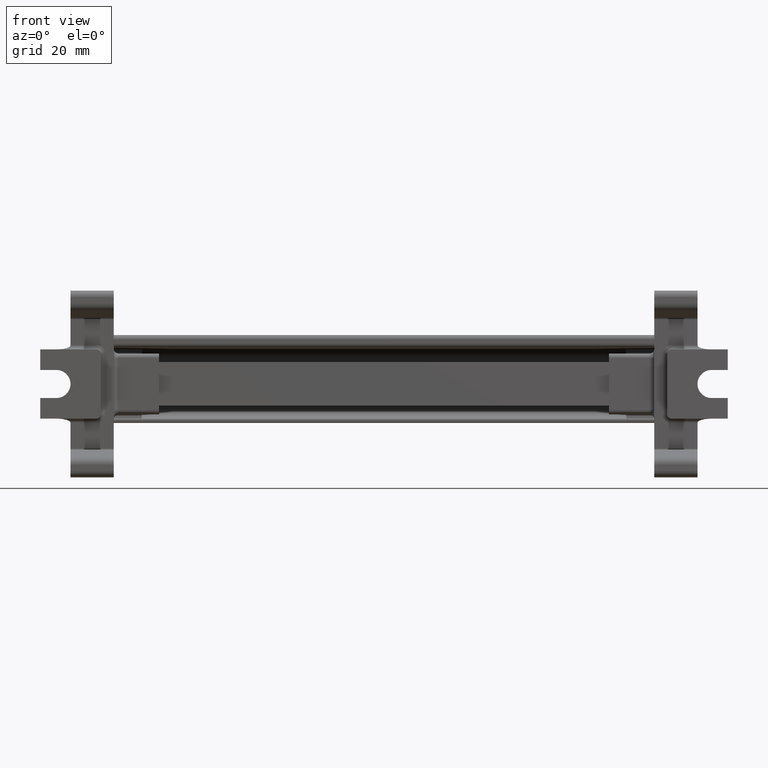
[diagram: clean part render]
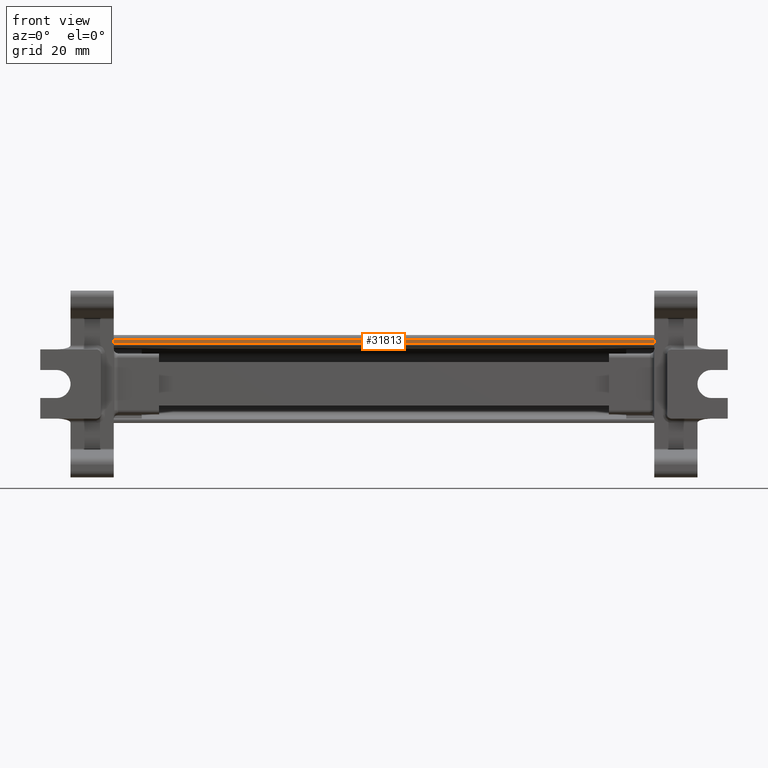
[diagram: same view with one face highlighted and labeled with its STEP entity id]
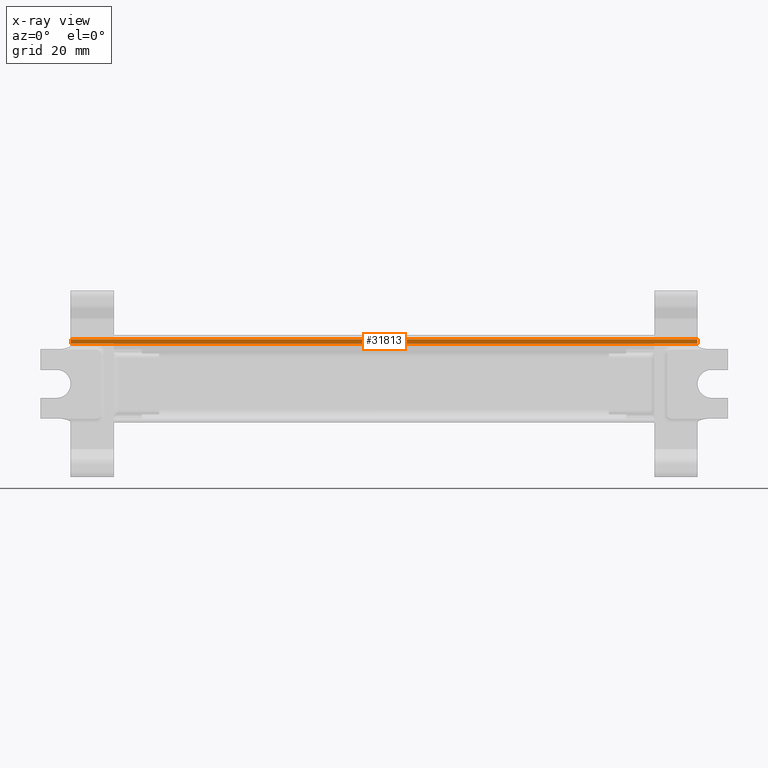
[diagram: x-ray of the same camera — body ghosted, the highlighted face saturated]
A machine part, front view. The second image highlights one B-rep face of the part: STEP entity #31813.
The next image is the same camera in x-ray: the body ghosted, the highlighted face saturated — about 0% of this face is hidden behind the body in this view.
In plain terms, the highlighted planar face has unit normal (0, 1, 0).
Its self-contained STEP definition (entity closure, byte-faithful):
#2259 = VECTOR ( 'NONE', #28400, 1000.000000000000000 ) ;
#6541 = EDGE_CURVE ( 'NONE', #33535, #12142, #15228, .T. ) ;
#6545 = EDGE_CURVE ( 'NONE', #12142, #12150, #15233, .T. ) ;
#6579 = EDGE_CURVE ( 'NONE', #33539, #12150, #15312, .T. ) ;
#8729 = EDGE_CURVE ( 'NONE', #33539, #33535, #28323, .T. ) ;
#10975 = ORIENTED_EDGE ( 'NONE', *, *, #6579, .T. ) ;
#12142 = VERTEX_POINT ( 'NONE', #18125 ) ;
#12150 = VERTEX_POINT ( 'NONE', #18109 ) ;
#12156 = ORIENTED_EDGE ( 'NONE', *, *, #6541, .F. ) ;
#12171 = ORIENTED_EDGE ( 'NONE', *, *, #6545, .F. ) ;
#12175 = ORIENTED_EDGE ( 'NONE', *, *, #8729, .F. ) ;
#14455 = VECTOR ( 'NONE', #15229, 1000.000000000000000 ) ;
#14458 = VECTOR ( 'NONE', #15313, 1000.000000000000000 ) ;
#14474 = VECTOR ( 'NONE', #15217, 1000.000000000000000 ) ;
#15217 = DIRECTION ( 'NONE',  ( -0.0000000000000000000, 6.931465349461502100E-007, -0.9999999999997597500 ) ) ;
#15228 = LINE ( 'NONE', #15241, #14474 ) ;
#15229 = DIRECTION ( 'NONE',  ( -1.000000000000000000, 9.157197356643954800E-016, 2.520934957069364000E-015 ) ) ;
#15231 = CARTESIAN_POINT ( 'NONE',  ( 12.64730230417519700, 50.08103363503439500, 47.42610898715796000 ) ) ;
#15233 = LINE ( 'NONE', #15231, #14455 ) ;
#15241 = CARTESIAN_POINT ( 'NONE',  ( 44.99230230417515500, 50.08105625487985400, 14.79253968043703400 ) ) ;
#15311 = CARTESIAN_POINT ( 'NONE',  ( -99.84769769582486300, 50.08103295100605100, 14.79254817504061100 ) ) ;
#15312 = LINE ( 'NONE', #15311, #14458 ) ;
#15313 = DIRECTION ( 'NONE',  ( -2.532522334615111200E-015, 0.0000000000000000000, -1.000000000000000000 ) ) ;
#15857 = EDGE_LOOP ( 'NONE', ( #12156, #12175, #10975, #12171 ) ) ;
#18109 = CARTESIAN_POINT ( 'NONE',  ( -99.84769769582480600, 50.08103329302026900, 47.42610898715823000 ) ) ;
#18125 = CARTESIAN_POINT ( 'NONE',  ( 44.99230230417515500, 50.08103363503460800, 47.42610864058459400 ) ) ;
#21384 = AXIS2_PLACEMENT_3D ( 'NONE', #30679, #30652, #30639 ) ;
#22199 = CARTESIAN_POINT ( 'NONE',  ( 44.99230230417515500, 50.08103295100605100, 48.41295415862416700 ) ) ;
#22243 = CARTESIAN_POINT ( 'NONE',  ( -99.84769769582480600, 50.08103295100599400, 48.41295450519761800 ) ) ;
#28323 = LINE ( 'NONE', #28325, #2259 ) ;
#28325 = CARTESIAN_POINT ( 'NONE',  ( 12.64730230417513100, 50.08103295100583800, 48.41295450519763200 ) ) ;
#28400 = DIRECTION ( 'NONE',  ( 1.000000000000000000, -9.157214830412849400E-016, -6.347291729459691000E-022 ) ) ;
#30639 = DIRECTION ( 'NONE',  ( 0.0000000000000000000, -6.931465349461502100E-007, 0.9999999999997597500 ) ) ;
#30652 = DIRECTION ( 'NONE',  ( 9.157214830415048400E-016, 0.9999999999997597500, 6.931465349461502100E-007 ) ) ;
#30659 = FACE_OUTER_BOUND ( 'NONE', #15857, .T. ) ;
#30676 = PLANE ( 'NONE',  #21384 ) ;
#30679 = CARTESIAN_POINT ( 'NONE',  ( 12.64730230417513100, 50.08105625487988300, 14.79253968043703400 ) ) ;
#31813 = ADVANCED_FACE ( 'NONE', ( #30659 ), #30676, .F. ) ;
#33535 = VERTEX_POINT ( 'NONE', #22199 ) ;
#33539 = VERTEX_POINT ( 'NONE', #22243 ) ;